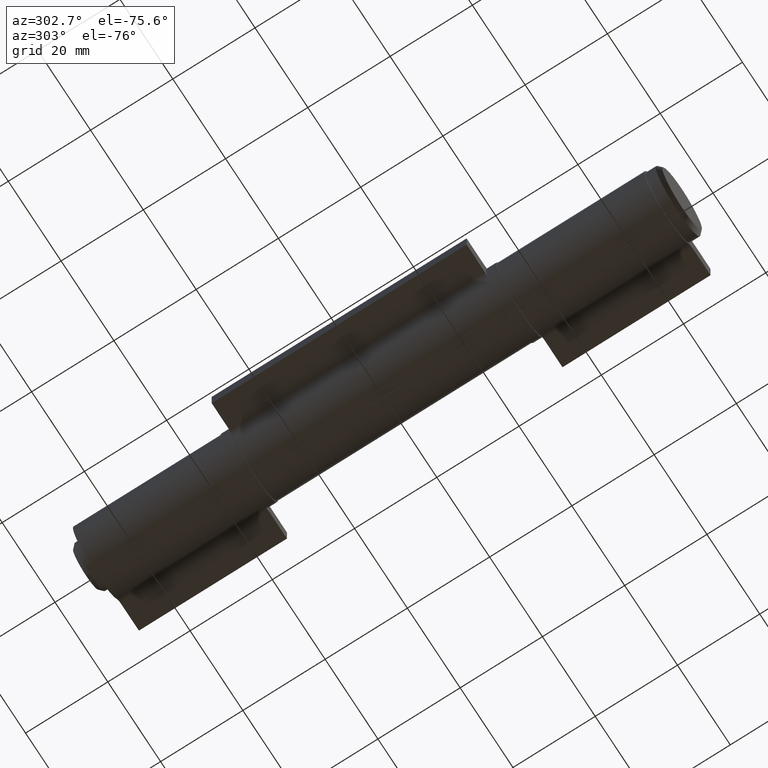
[diagram: clean part render]
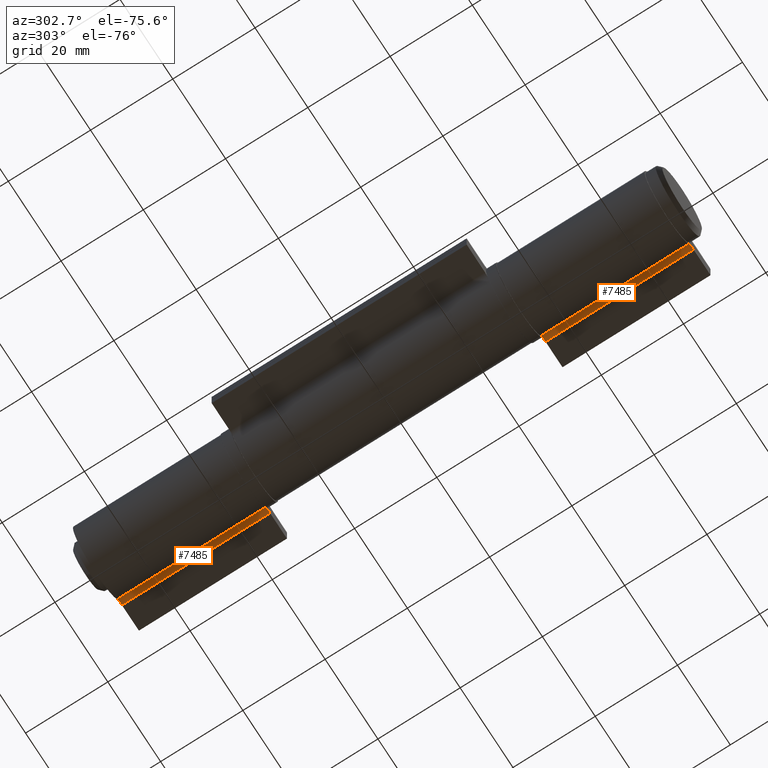
[diagram: same view with one multi-face feature highlighted, each face labeled with its STEP entity id]
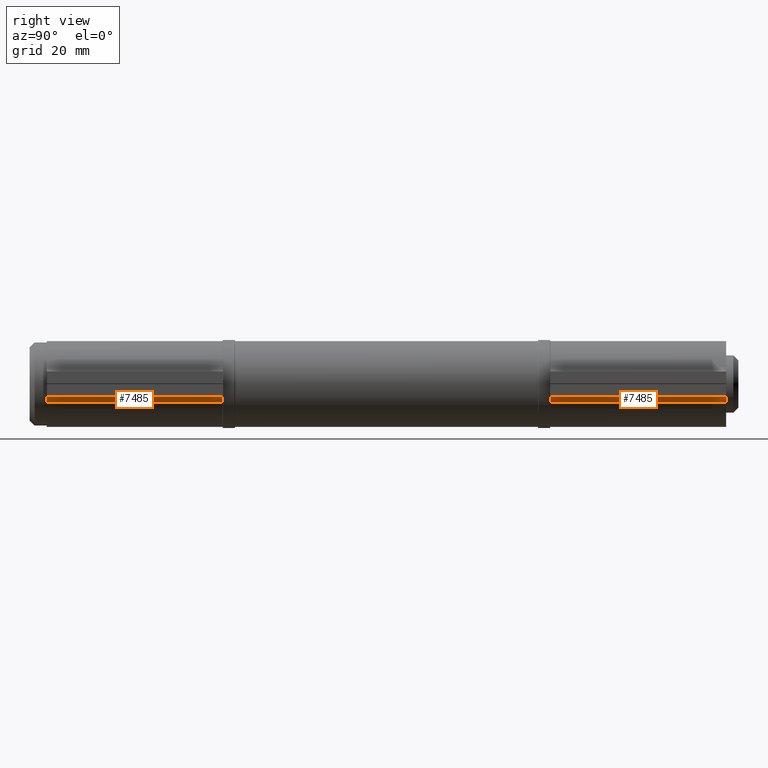
[diagram: same view with one multi-face feature highlighted, each face labeled with its STEP entity id]
A machine part, auxiliary view. The highlighted faces form ONE feature: a constant-radius fillet chain: 2 tangent blend faces with common blend radius 2 mm. The faces share edges in the B-rep.
A second angle (right view) of the same feature is appended — it is thin or edge-on in the first view.
Their STEP definitions:
[1] entity #7485 (Cylinder):
#303 = CARTESIAN_POINT ( 'NONE',  ( -3.707407407407434796, 18.00000000000000355, -7.980922898731804160 ) ) ;
#637 = CARTESIAN_POINT ( 'NONE',  ( -2.550000000000013145, 18.00000000000000355, -9.794769012079928672 ) ) ;
#970 = EDGE_CURVE ( 'NONE', #5777, #2091, #8492, .T. ) ;
#1207 = EDGE_CURVE ( 'NONE', #11161, #4550, #3251, .T. ) ;
#1342 = DIRECTION ( 'NONE',  ( 0.000000000000000000, 0.000000000000000000, -1.000000000000000000 ) ) ;
#2007 = CARTESIAN_POINT ( 'NONE',  ( -2.550000000000013145, 18.00000000000000355, -9.794769012079928672 ) ) ;
#2042 = AXIS2_PLACEMENT_3D ( 'NONE', #10452, #5909, #1342 ) ;
#2091 = VERTEX_POINT ( 'NONE', #303 ) ;
#2648 = FACE_OUTER_BOUND ( 'NONE', #11617, .T. ) ;
#3251 = CIRCLE ( 'NONE', #7758, 2.000000000000015543 ) ;
#4278 = ORIENTED_EDGE ( 'NONE', *, *, #1207, .T. ) ;
#4297 = AXIS2_PLACEMENT_3D ( 'NONE', #10050, #7367, #7400 ) ;
#4550 = VERTEX_POINT ( 'NONE', #11621 ) ;
#4833 = DIRECTION ( 'NONE',  ( 0.000000000000000000, -1.000000000000000000, 0.000000000000000000 ) ) ;
#5424 = VECTOR ( 'NONE', #11075, 1000.000000000000000 ) ;
#5603 = LINE ( 'NONE', #7590, #6454 ) ;
#5777 = VERTEX_POINT ( 'NONE', #637 ) ;
#5909 = DIRECTION ( 'NONE',  ( 0.000000000000000000, -1.000000000000000000, 0.000000000000000000 ) ) ;
#6097 = ORIENTED_EDGE ( 'NONE', *, *, #970, .F. ) ;
#6441 = CYLINDRICAL_SURFACE ( 'NONE', #2042, 2.000000000000015543 ) ;
#6454 = VECTOR ( 'NONE', #4833, 1000.000000000000000 ) ;
#7367 = DIRECTION ( 'NONE',  ( 0.000000000000000000, -1.000000000000000000, 0.000000000000000000 ) ) ;
#7400 = DIRECTION ( 'NONE',  ( 0.000000000000000000, 0.000000000000000000, -1.000000000000000000 ) ) ;
#7403 = CARTESIAN_POINT ( 'NONE',  ( -2.550000000000013145, -18.00000000000000355, -9.794769012079928672 ) ) ;
#7485 = ADVANCED_FACE ( 'NONE', ( #2648 ), #6441, .F. ) ;
#7590 = CARTESIAN_POINT ( 'NONE',  ( -3.707407407407434796, 18.00000000000000355, -7.980922898731804160 ) ) ;
#7758 = AXIS2_PLACEMENT_3D ( 'NONE', #8099, #10831, #8909 ) ;
#7972 = EDGE_CURVE ( 'NONE', #2091, #4550, #5603, .T. ) ;
#8099 = CARTESIAN_POINT ( 'NONE',  ( -4.550000000000029132, -18.00000000000000355, -9.794769012079928672 ) ) ;
#8492 = CIRCLE ( 'NONE', #4297, 2.000000000000015543 ) ;
#8895 = ORIENTED_EDGE ( 'NONE', *, *, #7972, .F. ) ;
#8909 = DIRECTION ( 'NONE',  ( 0.000000000000000000, 0.000000000000000000, -1.000000000000000000 ) ) ;
#9240 = LINE ( 'NONE', #2007, #5424 ) ;
#9350 = ORIENTED_EDGE ( 'NONE', *, *, #11694, .T. ) ;
#10050 = CARTESIAN_POINT ( 'NONE',  ( -4.550000000000029132, 18.00000000000000355, -9.794769012079928672 ) ) ;
#10452 = CARTESIAN_POINT ( 'NONE',  ( -4.550000000000029132, 18.00000000000000355, -9.794769012079928672 ) ) ;
#10831 = DIRECTION ( 'NONE',  ( 0.000000000000000000, -1.000000000000000000, 0.000000000000000000 ) ) ;
#11075 = DIRECTION ( 'NONE',  ( 0.000000000000000000, -1.000000000000000000, 0.000000000000000000 ) ) ;
#11161 = VERTEX_POINT ( 'NONE', #7403 ) ;
#11617 = EDGE_LOOP ( 'NONE', ( #4278, #8895, #6097, #9350 ) ) ;
#11621 = CARTESIAN_POINT ( 'NONE',  ( -3.707407407407434796, -18.00000000000000355, -7.980922898731804160 ) ) ;
#11694 = EDGE_CURVE ( 'NONE', #5777, #11161, #9240, .T. ) ;
[2] entity #7485 (Cylinder):
#303 = CARTESIAN_POINT ( 'NONE',  ( -3.707407407407434796, 18.00000000000000355, -7.980922898731804160 ) ) ;
#637 = CARTESIAN_POINT ( 'NONE',  ( -2.550000000000013145, 18.00000000000000355, -9.794769012079928672 ) ) ;
#970 = EDGE_CURVE ( 'NONE', #5777, #2091, #8492, .T. ) ;
#1207 = EDGE_CURVE ( 'NONE', #11161, #4550, #3251, .T. ) ;
#1342 = DIRECTION ( 'NONE',  ( 0.000000000000000000, 0.000000000000000000, -1.000000000000000000 ) ) ;
#2007 = CARTESIAN_POINT ( 'NONE',  ( -2.550000000000013145, 18.00000000000000355, -9.794769012079928672 ) ) ;
#2042 = AXIS2_PLACEMENT_3D ( 'NONE', #10452, #5909, #1342 ) ;
#2091 = VERTEX_POINT ( 'NONE', #303 ) ;
#2648 = FACE_OUTER_BOUND ( 'NONE', #11617, .T. ) ;
#3251 = CIRCLE ( 'NONE', #7758, 2.000000000000015543 ) ;
#4278 = ORIENTED_EDGE ( 'NONE', *, *, #1207, .T. ) ;
#4297 = AXIS2_PLACEMENT_3D ( 'NONE', #10050, #7367, #7400 ) ;
#4550 = VERTEX_POINT ( 'NONE', #11621 ) ;
#4833 = DIRECTION ( 'NONE',  ( 0.000000000000000000, -1.000000000000000000, 0.000000000000000000 ) ) ;
#5424 = VECTOR ( 'NONE', #11075, 1000.000000000000000 ) ;
#5603 = LINE ( 'NONE', #7590, #6454 ) ;
#5777 = VERTEX_POINT ( 'NONE', #637 ) ;
#5909 = DIRECTION ( 'NONE',  ( 0.000000000000000000, -1.000000000000000000, 0.000000000000000000 ) ) ;
#6097 = ORIENTED_EDGE ( 'NONE', *, *, #970, .F. ) ;
#6441 = CYLINDRICAL_SURFACE ( 'NONE', #2042, 2.000000000000015543 ) ;
#6454 = VECTOR ( 'NONE', #4833, 1000.000000000000000 ) ;
#7367 = DIRECTION ( 'NONE',  ( 0.000000000000000000, -1.000000000000000000, 0.000000000000000000 ) ) ;
#7400 = DIRECTION ( 'NONE',  ( 0.000000000000000000, 0.000000000000000000, -1.000000000000000000 ) ) ;
#7403 = CARTESIAN_POINT ( 'NONE',  ( -2.550000000000013145, -18.00000000000000355, -9.794769012079928672 ) ) ;
#7485 = ADVANCED_FACE ( 'NONE', ( #2648 ), #6441, .F. ) ;
#7590 = CARTESIAN_POINT ( 'NONE',  ( -3.707407407407434796, 18.00000000000000355, -7.980922898731804160 ) ) ;
#7758 = AXIS2_PLACEMENT_3D ( 'NONE', #8099, #10831, #8909 ) ;
#7972 = EDGE_CURVE ( 'NONE', #2091, #4550, #5603, .T. ) ;
#8099 = CARTESIAN_POINT ( 'NONE',  ( -4.550000000000029132, -18.00000000000000355, -9.794769012079928672 ) ) ;
#8492 = CIRCLE ( 'NONE', #4297, 2.000000000000015543 ) ;
#8895 = ORIENTED_EDGE ( 'NONE', *, *, #7972, .F. ) ;
#8909 = DIRECTION ( 'NONE',  ( 0.000000000000000000, 0.000000000000000000, -1.000000000000000000 ) ) ;
#9240 = LINE ( 'NONE', #2007, #5424 ) ;
#9350 = ORIENTED_EDGE ( 'NONE', *, *, #11694, .T. ) ;
#10050 = CARTESIAN_POINT ( 'NONE',  ( -4.550000000000029132, 18.00000000000000355, -9.794769012079928672 ) ) ;
#10452 = CARTESIAN_POINT ( 'NONE',  ( -4.550000000000029132, 18.00000000000000355, -9.794769012079928672 ) ) ;
#10831 = DIRECTION ( 'NONE',  ( 0.000000000000000000, -1.000000000000000000, 0.000000000000000000 ) ) ;
#11075 = DIRECTION ( 'NONE',  ( 0.000000000000000000, -1.000000000000000000, 0.000000000000000000 ) ) ;
#11161 = VERTEX_POINT ( 'NONE', #7403 ) ;
#11617 = EDGE_LOOP ( 'NONE', ( #4278, #8895, #6097, #9350 ) ) ;
#11621 = CARTESIAN_POINT ( 'NONE',  ( -3.707407407407434796, -18.00000000000000355, -7.980922898731804160 ) ) ;
#11694 = EDGE_CURVE ( 'NONE', #5777, #11161, #9240, .T. ) ;